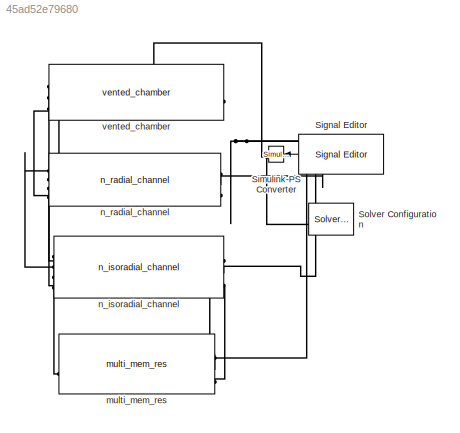
MODEL slx_45ad52e79680
KIND model
CONFIG AbsTol = 1e-3
CONFIG EnableMultiTasking = off
CONFIG FixedStep = 0.0005
CONFIG MaxStep = auto
CONFIG MinStep = 1e-6
CONFIG RelTol = 1e-3
CONFIG SampleTimeConstraint = Unconstrained
CONFIG SolverName = FixedStepAuto
CONFIG StartTime = 0.0
CONFIG StopTime = 85
BLOCK [Reference] Signal Editor  REF=SignalEditorBlockLib/Signal Editor
  LibrarySourceBlock = simulink/Sources/Signal Editor
  NameLocation = top
  SourceBlock = SignalEditorBlockLib/Signal Editor
  SourceType = SignalEditor
  UserDataPersistent = on
BLOCK [Reference] Simulink-PS Converter  REF=nesl_utility/Simulink-PS
Converter
  NameLocation = top
  SourceBlock = nesl_utility/Simulink-PS\nConverter
  SourceType = Simulink-PS\nConverter
BLOCK [Reference] Solver Configuration  REF=nesl_utility/Solver
Configuration
  NameLocation = top
  SourceBlock = nesl_utility/Solver\nConfiguration
  SourceType = Solver\nConfiguration
BLOCK [Reference] multi_mem_res  REF=C_uF_lib/multi_mem_res
  SourceBlock = C_uF_lib/multi_mem_res
  SourceType = multi_mem_res
BLOCK [Reference] n_isoradial_channel  REF=C_uF_lib/n_isoradial_channel
  SourceBlock = C_uF_lib/n_isoradial_channel
  SourceType = n_isoradial_channel
BLOCK [Reference] n_radial_channel  REF=C_uF_lib/n_radial_channel
  SourceBlock = C_uF_lib/n_radial_channel
  SourceType = n_radial_channel
BLOCK [Reference] vented_chamber  REF=C_uF_lib/vented_chamber
  SourceBlock = C_uF_lib/vented_chamber
  SourceType = vented_chamber
LINE Signal Editor:1 -> Simulink-PS Converter:1
PNET net1: Simulink-PS Converter:RConn1 -- Solver Configuration:RConn1 -- multi_mem_res:LConn2 -- n_isoradial_channel:LConn2 -- n_radial_channel:LConn2 -- vented_chamber:LConn1
PLINE multi_mem_res:LConn1 -- n_isoradial_channel:RConn3
PLINE multi_mem_res:LConn3 -- n_isoradial_channel:RConn4
PLINE multi_mem_res:RConn1 -- n_isoradial_channel:RConn1
PLINE n_isoradial_channel:LConn1 -- n_radial_channel:RConn3
PLINE n_isoradial_channel:LConn3 -- n_radial_channel:RConn4
PLINE n_isoradial_channel:RConn2 -- n_radial_channel:RConn1
PLINE n_radial_channel:LConn1 -- vented_chamber:RConn2
PLINE n_radial_channel:LConn3 -- vented_chamber:RConn3
PLINE n_radial_channel:RConn2 -- vented_chamber:RConn1
note: PNET lines group multi-terminal physical nets as a canonical sorted terminal list (undirected conserving connections); 2-terminal nets keep the pairwise PLINE form
